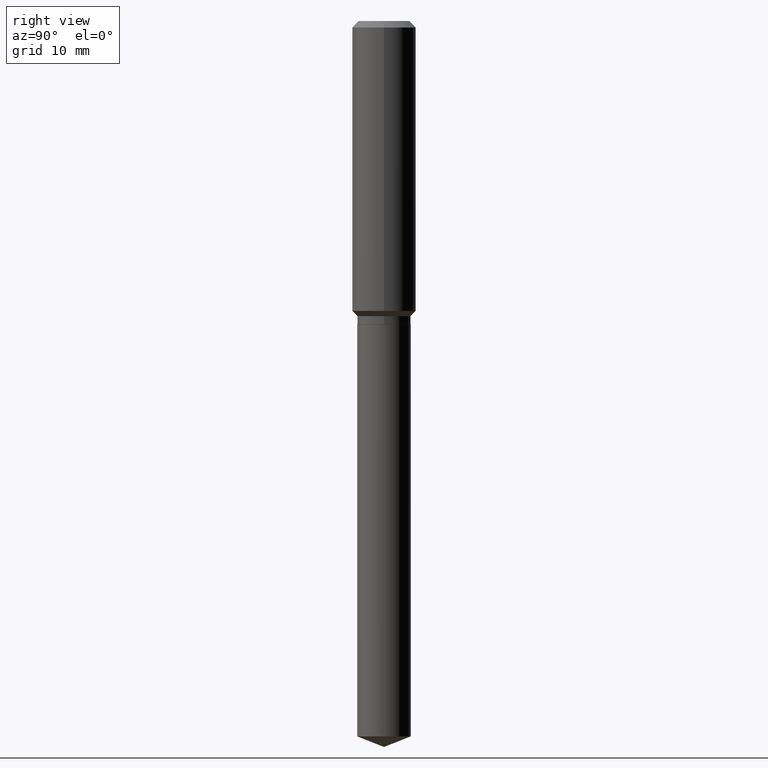
[diagram: clean part render]
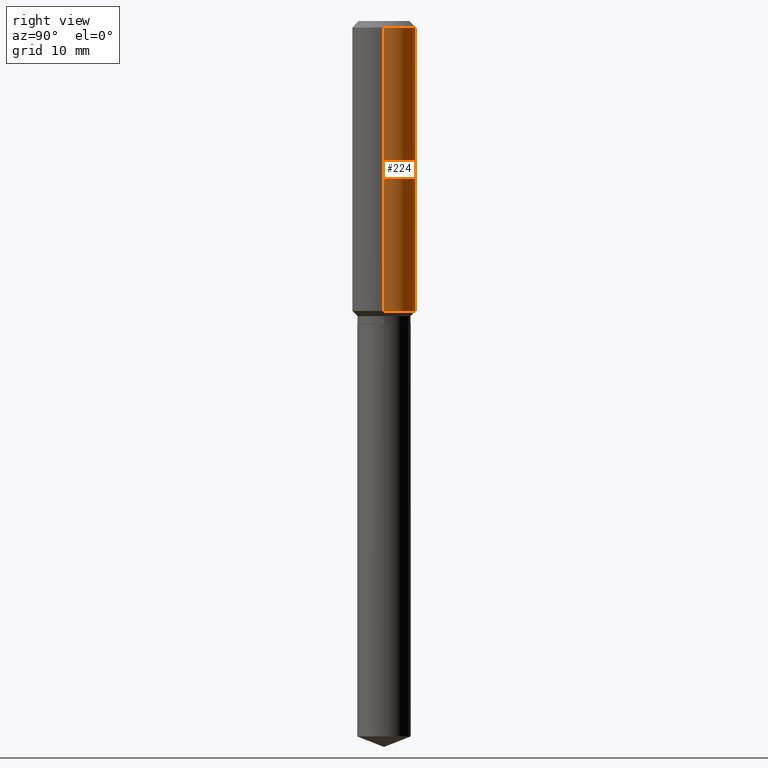
[diagram: same view with one face highlighted and labeled with its STEP entity id]
A machine part, right view. The second image highlights one B-rep face of the part: STEP entity #224.
In plain terms, the highlighted cylindrical surface (edge-blend (fillet) strip) has radius 4.0005 mm, axis along (-0, 0, 1).
Its self-contained STEP definition (entity closure, byte-faithful):
#15 = DIRECTION ( 'NONE',  ( -2.445468806185136877E-29, 3.491481338843145188E-15, 1.000000000000000000 ) ) ;
#38 = DIRECTION ( 'NONE',  ( -2.445468806185136597E-29, 3.491481338843145583E-15, 1.000000000000000000 ) ) ;
#48 = EDGE_CURVE ( 'NONE', #451, #388, #162, .T. ) ;
#67 = ORIENTED_EDGE ( 'NONE', *, *, #48, .T. ) ;
#77 = CARTESIAN_POINT ( 'NONE',  ( 3.498976767889693233E-29, -4.995611499616771828E-15, -1.430799999999999850 ) ) ;
#83 = EDGE_CURVE ( 'NONE', #246, #451, #272, .T. ) ;
#86 = CARTESIAN_POINT ( 'NONE',  ( 0.000000000000000000, 0.000000000000000000, 0.000000000000000000 ) ) ;
#91 = CARTESIAN_POINT ( 'NONE',  ( -0.1575000000000000844, 1.119104808822158392E-15, -7.747322767151481189E-30 ) ) ;
#94 = CARTESIAN_POINT ( 'NONE',  ( -0.1575000000000000011, -1.433691772073007448E-15, -0.03150000000000019451 ) ) ;
#118 = CYLINDRICAL_SURFACE ( 'NONE', #444, 0.1575000000000000844 ) ;
#128 = LINE ( 'NONE', #378, #230 ) ;
#137 = ORIENTED_EDGE ( 'NONE', *, *, #328, .F. ) ;
#149 = CARTESIAN_POINT ( 'NONE',  ( 0.1575000000000001676, -6.095428121352361674E-15, -1.430799999999999850 ) ) ;
#152 = DIRECTION ( 'NONE',  ( -2.445468806185136877E-29, 3.491481338843145188E-15, 1.000000000000000000 ) ) ;
#162 = LINE ( 'NONE', #91, #450 ) ;
#196 = DIRECTION ( 'NONE',  ( 1.000000000000000000, -6.982962677686265922E-15, 0.000000000000000000 ) ) ;
#209 = CARTESIAN_POINT ( 'NONE',  ( 7.703226739483228723E-31, -1.099816621735597661E-16, -0.03150000000000019451 ) ) ;
#222 = DIRECTION ( 'NONE',  ( 1.000000000000000000, -6.982962677686267499E-15, 4.876176775795936353E-29 ) ) ;
#224 = ADVANCED_FACE ( 'NONE', ( #449 ), #118, .T. ) ;
#230 = VECTOR ( 'NONE', #15, 39.37007874015748143 ) ;
#237 = ORIENTED_EDGE ( 'NONE', *, *, #83, .T. ) ;
#246 = VERTEX_POINT ( 'NONE', #149 ) ;
#248 = CIRCLE ( 'NONE', #375, 0.1575000000000000011 ) ;
#254 = DIRECTION ( 'NONE',  ( -2.445468806185136597E-29, 3.491481338843145583E-15, 1.000000000000000000 ) ) ;
#255 = ORIENTED_EDGE ( 'NONE', *, *, #426, .F. ) ;
#271 = CARTESIAN_POINT ( 'NONE',  ( 0.1575000000000000011, -1.209798283909146741E-15, -0.03150000000000019451 ) ) ;
#272 = CIRCLE ( 'NONE', #348, 0.1575000000000001676 ) ;
#328 = EDGE_CURVE ( 'NONE', #246, #367, #128, .T. ) ;
#348 = AXIS2_PLACEMENT_3D ( 'NONE', #77, #254, #362 ) ;
#362 = DIRECTION ( 'NONE',  ( 1.000000000000000000, -6.982962677686267499E-15, 0.000000000000000000 ) ) ;
#367 = VERTEX_POINT ( 'NONE', #271 ) ;
#375 = AXIS2_PLACEMENT_3D ( 'NONE', #209, #405, #196 ) ;
#378 = CARTESIAN_POINT ( 'NONE',  ( 0.1575000000000000844, -1.099816621735587677E-15, 7.679978421878603638E-30 ) ) ;
#388 = VERTEX_POINT ( 'NONE', #94 ) ;
#405 = DIRECTION ( 'NONE',  ( -2.445468806185136597E-29, 3.491481338843145583E-15, 1.000000000000000000 ) ) ;
#410 = EDGE_LOOP ( 'NONE', ( #237, #67, #255, #137 ) ) ;
#416 = CARTESIAN_POINT ( 'NONE',  ( -0.1575000000000001676, -3.876506690794614224E-15, -1.430799999999999850 ) ) ;
#426 = EDGE_CURVE ( 'NONE', #367, #388, #248, .T. ) ;
#444 = AXIS2_PLACEMENT_3D ( 'NONE', #86, #38, #222 ) ;
#449 = FACE_OUTER_BOUND ( 'NONE', #410, .T. ) ;
#450 = VECTOR ( 'NONE', #152, 39.37007874015748143 ) ;
#451 = VERTEX_POINT ( 'NONE', #416 ) ;